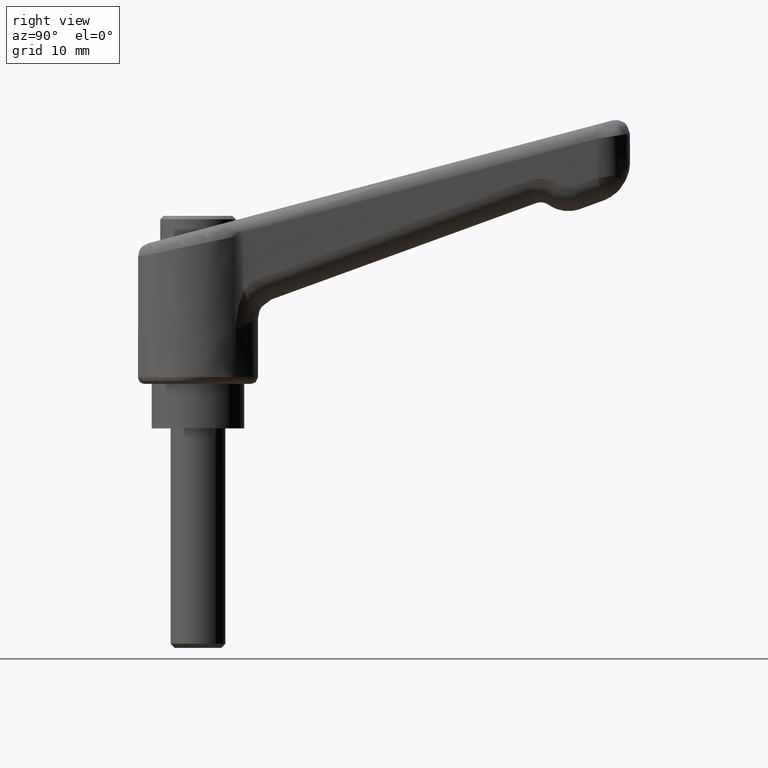
[diagram: clean part render]
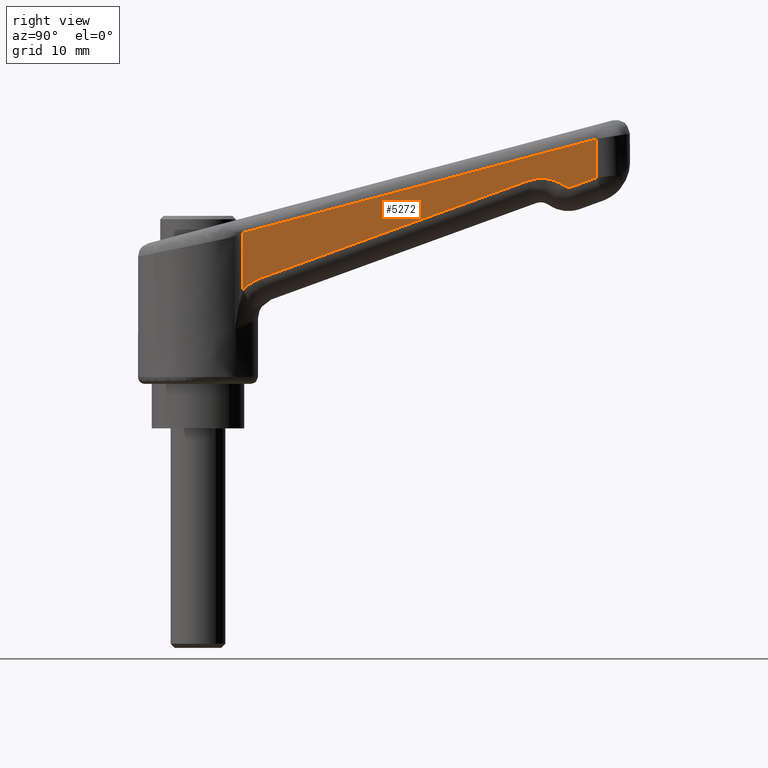
[diagram: same view with one face highlighted and labeled with its STEP entity id]
A machine part, right view. The second image highlights one B-rep face of the part: STEP entity #5272.
In plain terms, the highlighted face is a freeform B-spline surface patch.
Its self-contained STEP definition (entity closure, byte-faithful):
#3106=CARTESIAN_POINT('',(6.550467452646339,-6.480103245547469,20.222760433238349));
#3107=VERTEX_POINT('',#3106);
#3230=CARTESIAN_POINT('',(9.262958616653210,-6.402179053604970,21.973302108330000));
#3231=VERTEX_POINT('',#3230);
#3246=CARTESIAN_POINT('',(6.550467452646339,-6.480103245547469,20.222760433238349));
#3247=CARTESIAN_POINT('',(6.918612784110867,-6.469527200968066,20.597866141536102));
#3248=CARTESIAN_POINT('',(7.762211581388422,-6.445292373782693,21.290073599413610));
#3249=CARTESIAN_POINT('',(8.737742907311576,-6.417267401279315,21.780764120731750));
#3250=CARTESIAN_POINT('',(9.262958616653210,-6.402179053604970,21.973302108330000));
#3251=B_SPLINE_CURVE_WITH_KNOTS('',3,(#3246,#3247,#3248,#3249,#3250),.UNSPECIFIED.,.F.,.U.,(4,1,4),(4.268094E-009,1.577039786002152,3.255807423742064),.UNSPECIFIED.);
#3252=EDGE_CURVE('',#3107,#3231,#3251,.T.);
#3281=CARTESIAN_POINT('',(48.203780514961302,-5.283490771678870,36.146592287265662));
#3282=VERTEX_POINT('',#3281);
#3296=CARTESIAN_POINT('',(9.262958616653210,-6.402179053604970,21.973302108330000));
#3297=CARTESIAN_POINT('',(48.203780514961302,-5.283490771678870,36.146592287265662));
#3298=QUASI_UNIFORM_CURVE('',1,(#3296,#3297),.UNSPECIFIED.,.F.,.U.);
#3299=EDGE_CURVE('',#3231,#3282,#3298,.T.);
#3370=CARTESIAN_POINT('',(53.251345588415312,-5.138484795310980,35.475343704800252));
#3371=VERTEX_POINT('',#3370);
#3385=CARTESIAN_POINT('',(48.203780514961302,-5.283490771678870,36.146592287265662));
#3386=CARTESIAN_POINT('',(48.566508540662277,-5.273070354951756,36.278689797021080));
#3387=CARTESIAN_POINT('',(49.185362967794497,-5.255291962968678,36.432501880334598));
#3388=CARTESIAN_POINT('',(50.095040903818102,-5.229158820478464,36.497042521062610));
#3389=CARTESIAN_POINT('',(50.949968347875981,-5.204598544990121,36.435357496244087));
#3390=CARTESIAN_POINT('',(52.053215163057430,-5.172904573880856,36.168362039834278));
#3391=CARTESIAN_POINT('',(52.823037494331309,-5.150789190096428,35.777163789769972));
#3392=CARTESIAN_POINT('',(53.251345588415312,-5.138484795310980,35.475343704800252));
#3393=B_SPLINE_CURVE_WITH_KNOTS('',3,(#3385,#3386,#3387,#3388,#3389,#3390,#3391,#3392),.UNSPECIFIED.,.F.,.U.,(4,1,1,1,1,4),(9.538891E-009,1.158510296203686,1.903277942056347,2.730778552877236,3.723787528218034,5.296058643543170),.UNSPECIFIED.);
#3394=EDGE_CURVE('',#3282,#3371,#3393,.T.);
#3470=CARTESIAN_POINT('',(54.627951540235003,-5.098937788543840,35.292274925200552));
#3471=VERTEX_POINT('',#3470);
#3485=CARTESIAN_POINT('',(53.251345588415312,-5.138484795310980,35.475343704800252));
#3486=CARTESIAN_POINT('',(53.362015043141682,-5.135305493587644,35.397385679763048));
#3487=CARTESIAN_POINT('',(53.631564306151162,-5.127561907622299,35.257697098900657));
#3488=CARTESIAN_POINT('',(54.111772433137013,-5.113766533555823,35.171630384475513));
#3489=CARTESIAN_POINT('',(54.458388282927437,-5.103808985908119,35.230404212528370));
#3490=CARTESIAN_POINT('',(54.627951540235003,-5.098937788543840,35.292274925200552));
#3491=B_SPLINE_CURVE_WITH_KNOTS('',3,(#3485,#3486,#3487,#3488,#3489,#3490),.UNSPECIFIED.,.F.,.U.,(4,1,1,4),(0.000000047114766,0.406230762871835,0.902734275757458,1.444375752151283),.UNSPECIFIED.);
#3492=EDGE_CURVE('',#3371,#3471,#3491,.T.);
#3531=CARTESIAN_POINT('',(58.143580295737003,-4.997941135143631,36.571850614768152));
#3532=VERTEX_POINT('',#3531);
#3546=CARTESIAN_POINT('',(54.627951540235003,-5.098937788543840,35.292274925200552));
#3547=CARTESIAN_POINT('',(58.143580295737003,-4.997941135143631,36.571850614768152));
#3548=QUASI_UNIFORM_CURVE('',1,(#3546,#3547),.UNSPECIFIED.,.F.,.U.);
#3549=EDGE_CURVE('',#3471,#3532,#3548,.T.);
#4410=CARTESIAN_POINT('',(6.550467452646331,-6.480103245547469,27.945424589920599));
#4411=VERTEX_POINT('',#4410);
#4412=CARTESIAN_POINT('',(6.550467452646331,-6.480103245547469,27.945424589920599));
#4413=CARTESIAN_POINT('',(6.550467452646339,-6.480103245547469,20.222760433238349));
#4414=QUASI_UNIFORM_CURVE('',1,(#4412,#4413),.UNSPECIFIED.,.F.,.U.);
#4415=EDGE_CURVE('',#4411,#3107,#4414,.T.);
#4476=CARTESIAN_POINT('',(6.473641861336390,-6.482310283934461,28.545761944539251));
#4477=VERTEX_POINT('',#4476);
#4496=CARTESIAN_POINT('',(6.473641861336390,-6.482310283934461,28.545761944539251));
#4497=CARTESIAN_POINT('',(6.524831497762022,-6.480839712856766,28.350046658470951));
#4498=CARTESIAN_POINT('',(6.550735116497038,-6.480095556125450,28.147730387248380));
#4499=CARTESIAN_POINT('',(6.550467452646331,-6.480103245547469,27.945424589920599));
#4500=B_SPLINE_CURVE_WITH_KNOTS('',3,(#4496,#4497,#4498,#4499),.UNSPECIFIED.,.F.,.U.,(4,4),(2.538355E-009,0.606911149646993),.UNSPECIFIED.);
#4501=EDGE_CURVE('',#4477,#4411,#4500,.T.);
#4689=CARTESIAN_POINT('',(58.143580295737003,-4.997941135143631,42.228393305217850));
#4690=VERTEX_POINT('',#4689);
#4691=CARTESIAN_POINT('',(58.143580295737003,-4.997941135143631,42.228393305217850));
#4692=CARTESIAN_POINT('',(6.473641861336390,-6.482310283934461,28.545761944539251));
#4693=QUASI_UNIFORM_CURVE('',1,(#4691,#4692),.UNSPECIFIED.,.F.,.U.);
#4694=EDGE_CURVE('',#4690,#4477,#4693,.T.);
#5252=CARTESIAN_POINT('',(60.724495075510191,-4.923796857235934,43.327574959048732));
#5253=CARTESIAN_POINT('',(3.892727081563211,-6.556454561842149,43.327574959048732));
#5254=CARTESIAN_POINT('',(60.724495075510191,-4.923796857235934,19.123580156627291));
#5255=CARTESIAN_POINT('',(3.892727081563211,-6.556454561842149,19.123580156627291));
#5256=B_SPLINE_SURFACE_WITH_KNOTS('',1,1,((#5252,#5254),(#5253,#5255)),.UNSPECIFIED.,.F.,.F.,.U.,(2,2),(2,2),(0.0,56.855214576133882),(0.0,24.203994802421441),.UNSPECIFIED.);
#5257=ORIENTED_EDGE('',*,*,#4415,.T.);
#5258=ORIENTED_EDGE('',*,*,#3252,.T.);
#5259=ORIENTED_EDGE('',*,*,#3299,.T.);
#5260=ORIENTED_EDGE('',*,*,#3394,.T.);
#5261=ORIENTED_EDGE('',*,*,#3492,.T.);
#5262=ORIENTED_EDGE('',*,*,#3549,.T.);
#5263=CARTESIAN_POINT('',(58.143580295737003,-4.997941135143631,36.571850614768152));
#5264=CARTESIAN_POINT('',(58.143580295737003,-4.997941135143631,42.228393305217850));
#5265=QUASI_UNIFORM_CURVE('',1,(#5263,#5264),.UNSPECIFIED.,.F.,.U.);
#5266=EDGE_CURVE('',#3532,#4690,#5265,.T.);
#5267=ORIENTED_EDGE('',*,*,#5266,.T.);
#5268=ORIENTED_EDGE('',*,*,#4694,.T.);
#5269=ORIENTED_EDGE('',*,*,#4501,.T.);
#5270=EDGE_LOOP('',(#5257,#5258,#5259,#5260,#5261,#5262,#5267,#5268,#5269));
#5271=FACE_OUTER_BOUND('',#5270,.T.);
#5272=ADVANCED_FACE('',(#5271),#5256,.T.);